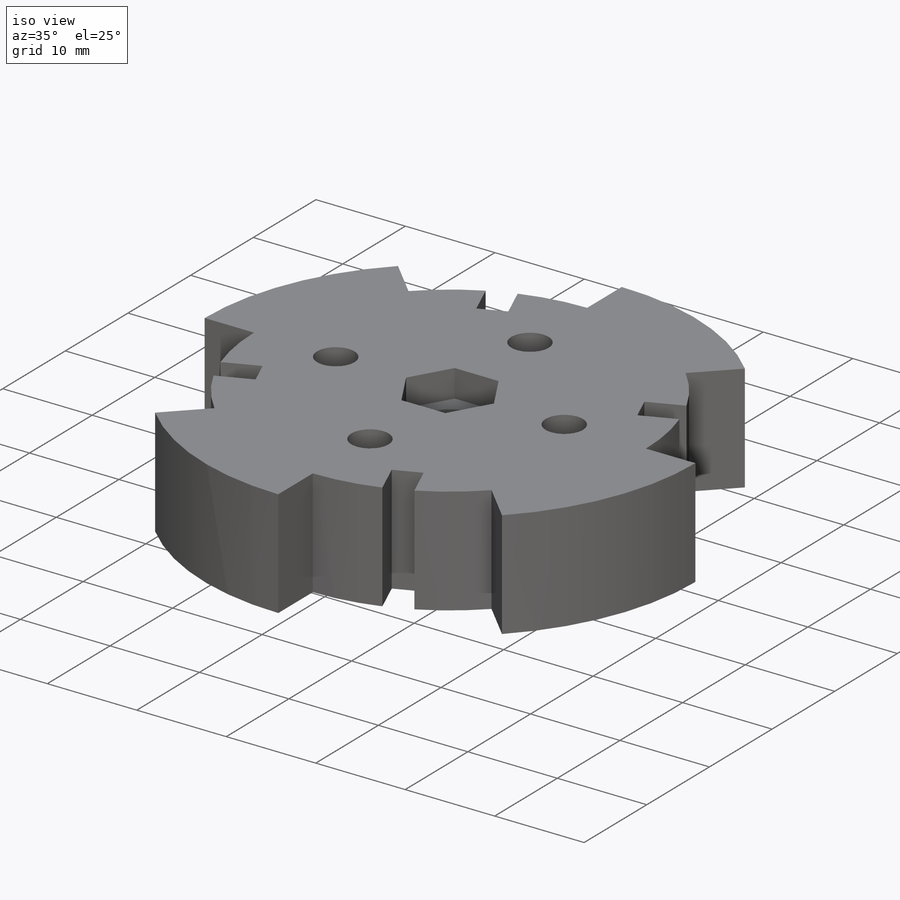
[diagram: iso view]
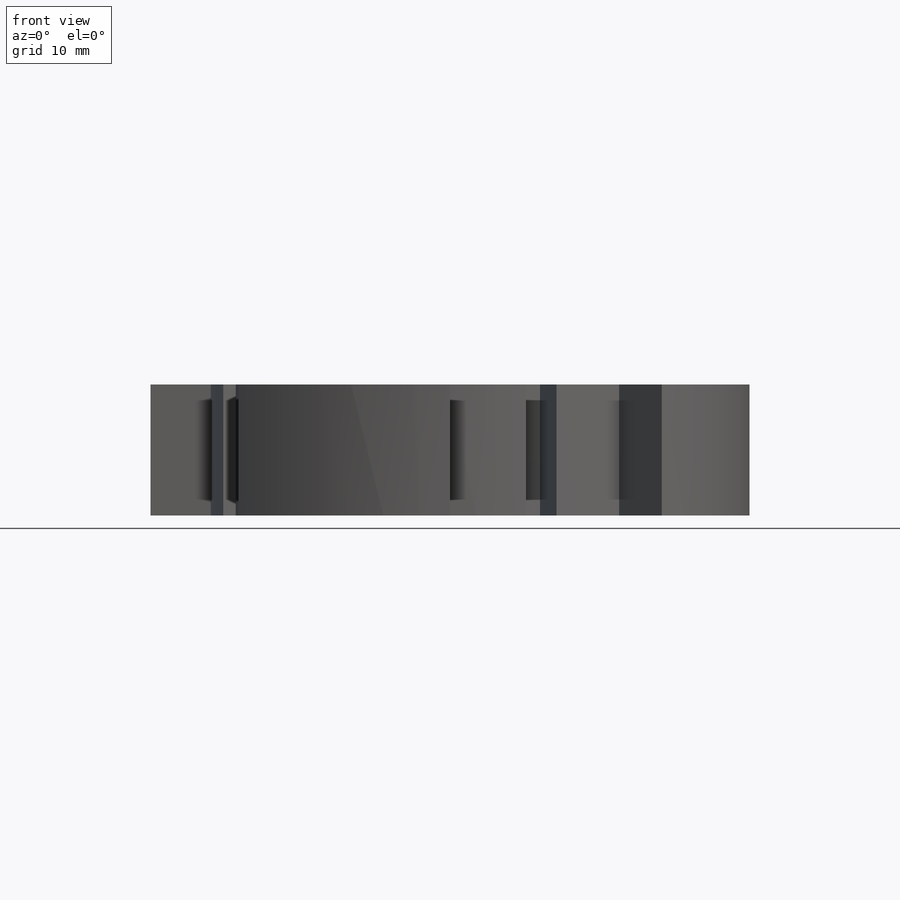
[diagram: front view]
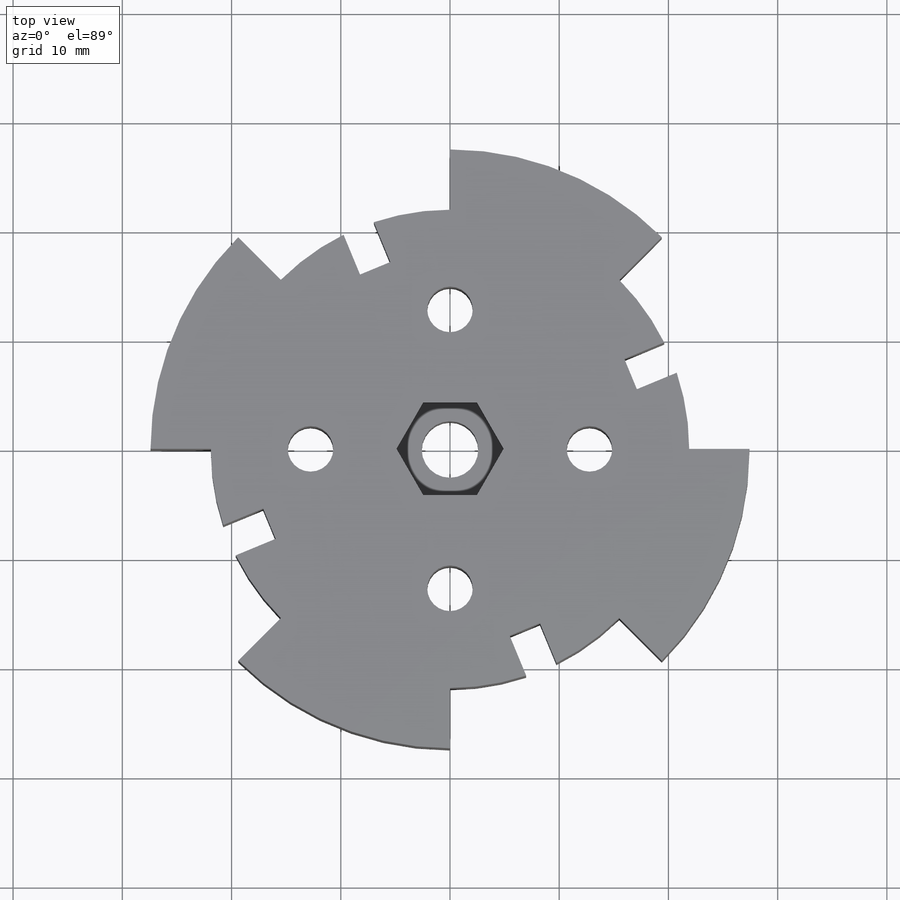
[diagram: top view]
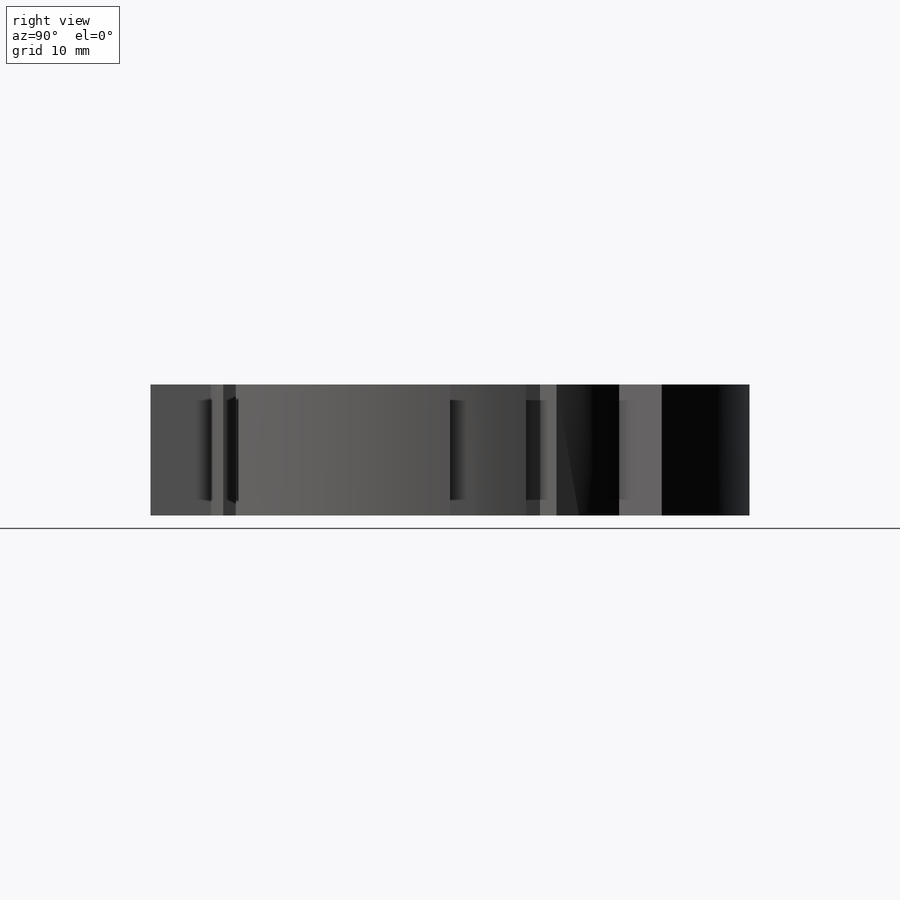
[diagram: right view]
SOLIDWORKS PART (.sldprt)
format: sldprt  version: not decoded by parser v0  size: 486,400 bytes
history: native  units: mm
features: sketch x7, cut_extrude x4, pattern_circular x2, material x1, extrude x1, hole x1 (+12 scaffold rows collapsed)
feature tree (28):
  scaffold x12  (default folders/planes/origin — collapsed)
  material  "Material <not specified>"
  sketch  "Sketch2"  dims[D1=54.84mm]
  extrude  "Boss-Extrude1"  Depth=12mm
  sketch  "Sketch1"  dims[c1.D1=54.84mm c1.D2=43.8mm c1.D3=5.52mm c2.D3=45.0deg c2.D4=5.52mm c3.D4=45.0deg]
  cut_extrude  "Cut-Extrude1"  [1 undecoded]
  sketch  "Sketch3"  dims[D1=4.17mm D2=12.77mm]
  cut_extrude  "Cut-Extrude2"  [1 undecoded]
  pattern_circular  "CirPattern1"  Count=4 Angle=360deg
  sketch  "Sketch5"  dims[c1.D1=3.0mm c1.D2=4.0mm c1.D3=~2.974588mm c2.D2=4.0mm c2.D3=~0.372014mm c3.D2=4.0mm]
  cut_extrude  "Cut-Extrude4"  [1 undecoded]
  pattern_circular  "CirPattern2"  Count=4 Angle=360deg
  hole  "#6 (0.204) Diameter Hole1"  Diameter=5.1816mm Depth=12mm
  sketch  "Sketch7"
  sketch  "Sketch6"  dims[hole-wizard template sketch: 46 standard entries collapsed; hole parameters kept: c15.Hole Dia.=5.1816mm c15.Hole Depth=12.0mm c15.D3=~14.816244mm c15.Drill Angle=118.0deg]
  sketch  "Sketch8"  dims[D1=~6.882028mm]
  cut_extrude  "Cut-Extrude5"  Depth=3.08mm
decode coverage: 11 of 15 modeling features carry decoded parameters
note: ~ marks probable driven/reference dimensions
note: 3 parameter values undecoded
summary: no parameter record found for 3 features
note: suppression state not decoded; provenance and decode notes live in map.json
